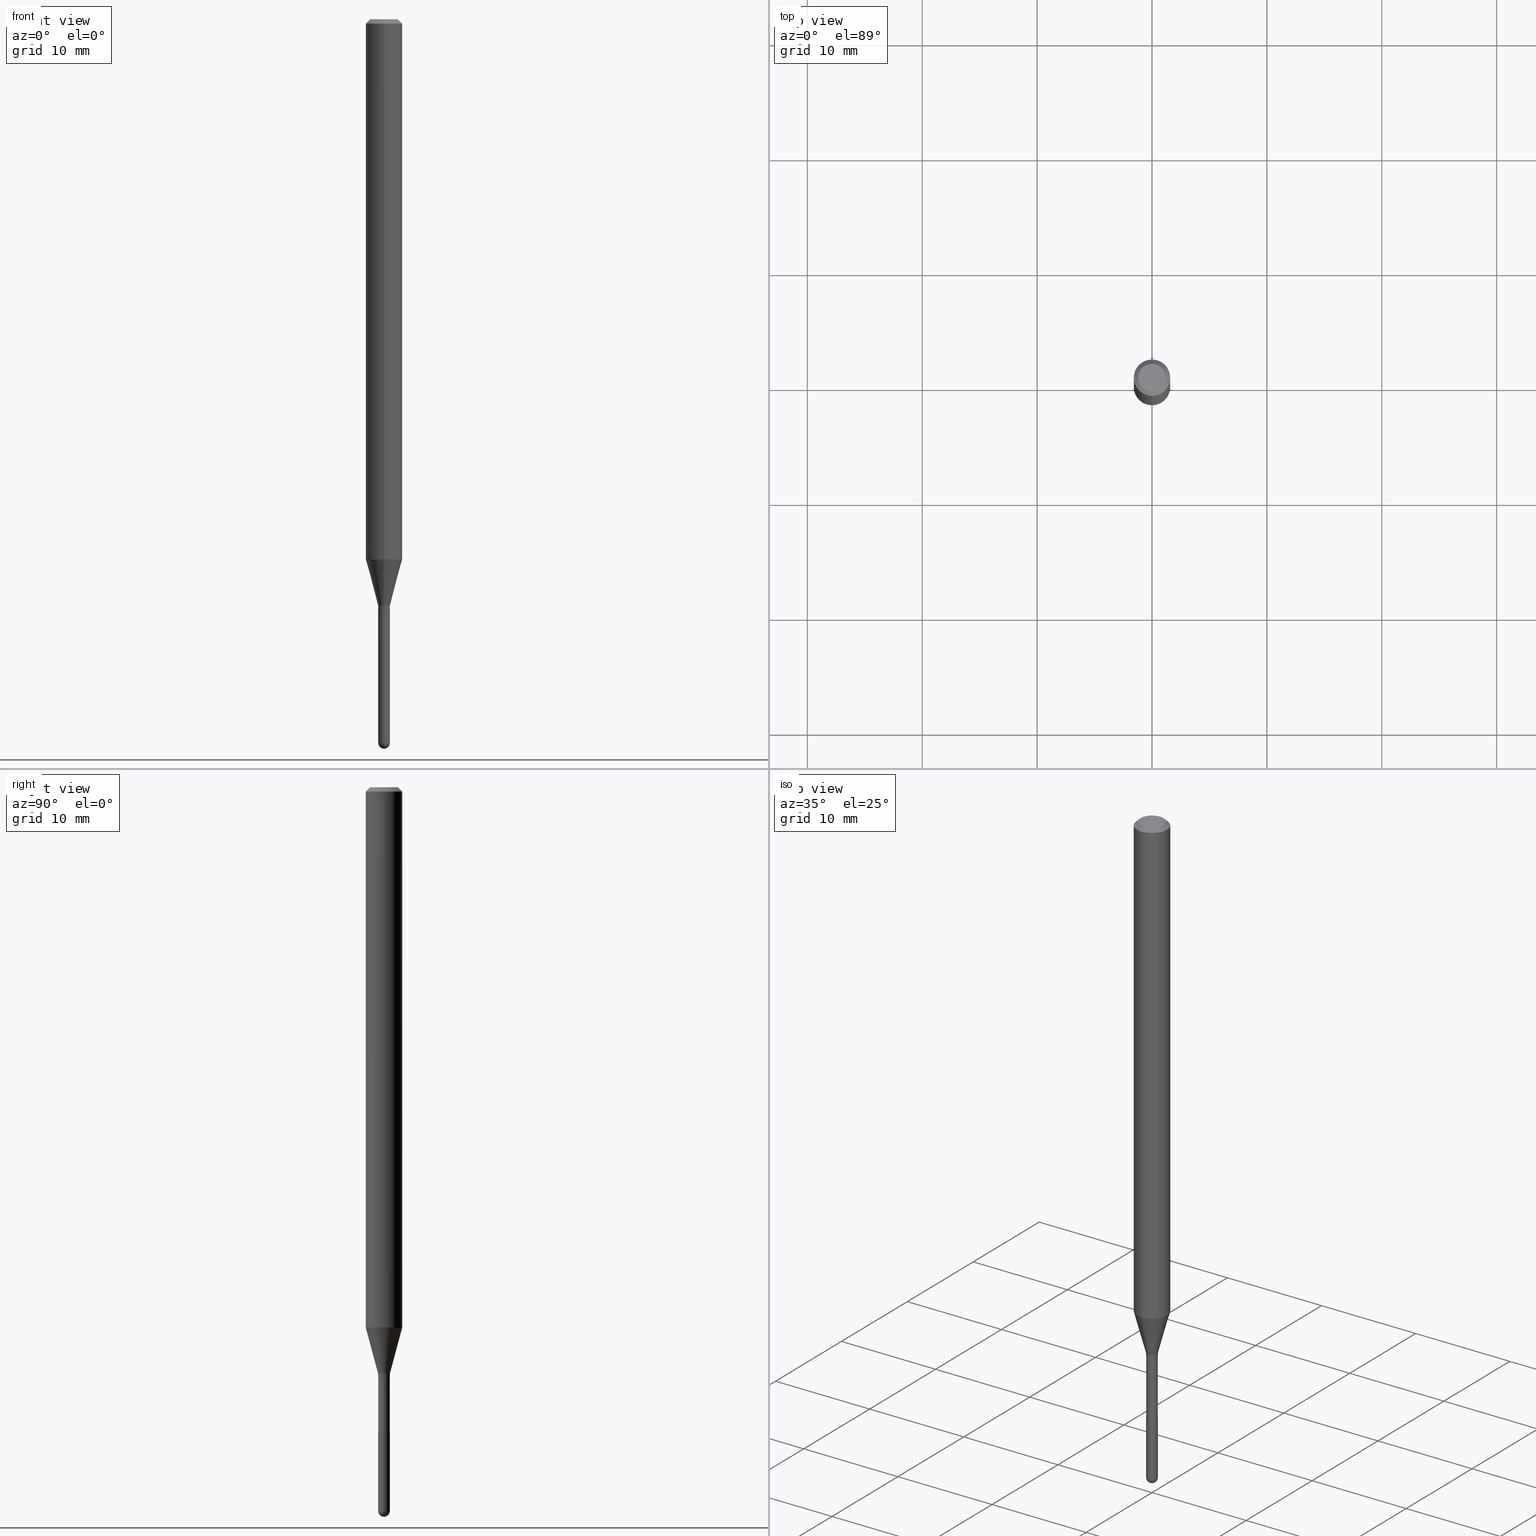
[diagram: canonical four-view strip — front | top / right | iso, engineering-drawing reading convention]
A machine part, canonical four-view strip (front | top / right | iso — engineering-drawing reading convention). The complete STEP part file that produces these views, byte-faithful:
ISO-10303-21;
HEADER;
FILE_DESCRIPTION (( 'STEP AP203' ),
    '1' );
FILE_NAME ('01013.STEP',
    '2024-03-07T19:45:48',
    ( '' ),
    ( '' ),
    'SwSTEP 2.0',
    'SolidWorks 2023',
    '' );
FILE_SCHEMA (( 'CONFIG_CONTROL_DESIGN' ));
ENDSEC;

DATA;
#1 = PERSON_AND_ORGANIZATION ( #465, #158 ) ;
#2 = LINE ( 'NONE', #361, #421 ) ;
#3 = ORIENTED_EDGE ( 'NONE', *, *, #135, .T. ) ;
#4 = FACE_OUTER_BOUND ( 'NONE', #500, .T. ) ;
#5 = DIRECTION ( 'NONE',  ( -2.445521062441042813E-29, 3.491406504910446446E-15, 1.000000000000000000 ) ) ;
#6 = DIRECTION ( 'NONE',  ( -2.445521062441042813E-29, 3.491406504910446446E-15, 1.000000000000000000 ) ) ;
#7 = DIRECTION ( 'NONE',  ( -6.982962677686265922E-15, -1.000000000000000000, 3.491406504910446446E-15 ) ) ;
#8 = CIRCLE ( 'NONE', #461, 0.06250000000000000000 ) ;
#9 = CARTESIAN_POINT ( 'NONE',  ( 4.939952546130906960E-29, -7.052641139919102262E-15, -2.020000000000000018 ) ) ;
#10 = CARTESIAN_POINT ( 'NONE',  ( 3.668281593661566673E-31, -5.237109757365672602E-17, -0.01500000000000000812 ) ) ;
#11 = LINE ( 'NONE', #407, #413 ) ;
#12 = ADVANCED_FACE ( 'NONE', ( #71 ), #241, .T. ) ;
#13 = DIRECTION ( 'NONE',  ( 2.438088387897960049E-29, -3.491481338843145188E-15, -1.000000000000000000 ) ) ;
#14 = ADVANCED_FACE ( 'NONE', ( #347 ), #344, .T. ) ;
#15 = DIRECTION ( 'NONE',  ( 1.000000000000000000, -6.982962677686235945E-15, 0.000000000000000000 ) ) ;
#16 = CIRCLE ( 'NONE', #23, 0.02000000000000000042 ) ;
#17 = DIRECTION ( 'NONE',  ( -6.982962677686266711E-15, -1.000000000000000000, 3.491406504910446840E-15 ) ) ;
#18 = DIRECTION ( 'NONE',  ( 2.445521062441042813E-29, -3.491406504910446446E-15, -1.000000000000000000 ) ) ;
#19 = LINE ( 'NONE', #132, #289 ) ;
#20 = VERTEX_POINT ( 'NONE', #322 ) ;
#21 = CARTESIAN_POINT ( 'NONE',  ( 0.02000000000000000042, -7.995492265950803467E-15, -2.480000000000000426 ) ) ;
#22 = ADVANCED_FACE ( 'NONE', ( #435 ), #432, .T. ) ;
#23 = AXIS2_PLACEMENT_3D ( 'NONE', #115, #169, #405 ) ;
#24 = VERTEX_POINT ( 'NONE', #275 ) ;
#25 = EDGE_LOOP ( 'NONE', ( #69, #163, #152, #186 ) ) ;
#26 = ORIENTED_EDGE ( 'NONE', *, *, #140, .F. ) ;
#27 = ORIENTED_EDGE ( 'NONE', *, *, #199, .T. ) ;
#28 = EDGE_LOOP ( 'NONE', ( #341, #154, #470, #479 ) ) ;
#29 = COORDINATED_UNIVERSAL_TIME_OFFSET ( 5, 0, .BEHIND. ) ;
#30 = CARTESIAN_POINT ( 'NONE',  ( 0.000000000000000000, 0.000000000000000000, 0.000000000000000000 ) ) ;
#31 = CALENDAR_DATE ( 2024, 7, 3 ) ;
#32 = CARTESIAN_POINT ( 'NONE',  ( 4.939952546130906960E-29, -7.052641139919102262E-15, -2.020000000000000018 ) ) ;
#33 = CIRCLE ( 'NONE', #107, 0.02000000000000000042 ) ;
#34 = ORIENTED_EDGE ( 'NONE', *, *, #494, .T. ) ;
#35 = CALENDAR_DATE ( 2024, 7, 3 ) ;
#36 = DIRECTION ( 'NONE',  ( -2.445521062441042813E-29, 3.491406504910446446E-15, 1.000000000000000000 ) ) ;
#37 = DIRECTION ( 'NONE',  ( -2.445521062441042813E-29, 3.491406504910446446E-15, 1.000000000000000000 ) ) ;
#38 = LINE ( 'NONE', #510, #374 ) ;
#39 = DIRECTION ( 'NONE',  ( 6.982962677686265133E-15, 1.000000000000000000, 0.000000000000000000 ) ) ;
#40 = PERSON_AND_ORGANIZATION ( #465, #158 ) ;
#41 = DIRECTION ( 'NONE',  ( 6.982962677686265922E-15, 1.000000000000000000, 0.000000000000000000 ) ) ;
#42 = APPROVAL ( #390, 'UNSPECIFIED' ) ;
#43 = DIRECTION ( 'NONE',  ( -2.445468806185136597E-29, 3.491481338843145583E-15, 1.000000000000000000 ) ) ;
#44 = AXIS2_PLACEMENT_3D ( 'NONE', #356, #167, #475 ) ;
#45 = PLANE ( 'NONE',  #52 ) ;
#46 = FACE_OUTER_BOUND ( 'NONE', #108, .T. ) ;
#47 = CARTESIAN_POINT ( 'NONE',  ( 3.668281593661566673E-31, -5.237109757365672602E-17, -0.01500000000000000812 ) ) ;
#48 = CARTESIAN_POINT ( 'NONE',  ( -0.02000000000000000042, -7.713724465245058285E-15, -2.480000000000000426 ) ) ;
#49 = ORIENTED_EDGE ( 'NONE', *, *, #143, .F. ) ;
#50 = DIRECTION ( 'NONE',  ( -2.445521062441042813E-29, 3.491406504910446446E-15, 1.000000000000000000 ) ) ;
#51 = DIRECTION ( 'NONE',  ( -2.445521062441042813E-29, 3.491406504910446446E-15, 1.000000000000000000 ) ) ;
#52 = AXIS2_PLACEMENT_3D ( 'NONE', #9, #173, #324 ) ;
#53 = DIRECTION ( 'NONE',  ( -6.982962677686264344E-15, -1.000000000000000000, 0.000000000000000000 ) ) ;
#54 = DIRECTION ( 'NONE',  ( -6.982962677686264344E-15, -1.000000000000000000, 0.000000000000000000 ) ) ;
#55 = ORIENTED_EDGE ( 'NONE', *, *, #256, .T. ) ;
#56 = PRODUCT ( '01013', '01013', '', ( #482 ) ) ;
#57 = CC_DESIGN_PERSON_AND_ORGANIZATION_ASSIGNMENT ( #233, #80, ( #349 ) ) ;
#58 = ORIENTED_EDGE ( 'NONE', *, *, #103, .F. ) ;
#59 = CIRCLE ( 'NONE', #168, 0.01999999999999992062 ) ;
#60 = EDGE_CURVE ( 'NONE', #339, #284, #384, .T. ) ;
#61 = LOCAL_TIME ( 14, 45, 48.00000000000000000, #394 ) ;
#62 = LOCAL_TIME ( 14, 45, 48.00000000000000000, #323 ) ;
#63 = ORIENTED_EDGE ( 'NONE', *, *, #135, .F. ) ;
#64 = ORIENTED_EDGE ( 'NONE', *, *, #343, .T. ) ;
#65 = ORIENTED_EDGE ( 'NONE', *, *, #140, .T. ) ;
#66 = CLOSED_SHELL ( 'NONE', ( #12, #96, #193, #160, #22 ) ) ;
#67 = CIRCLE ( 'NONE', #123, 0.04749999999999999362 ) ;
#68 = EDGE_CURVE ( 'NONE', #498, #468, #124, .T. ) ;
#69 = ORIENTED_EDGE ( 'NONE', *, *, #60, .F. ) ;
#70 = DATE_AND_TIME ( #430, #191 ) ;
#71 = FACE_OUTER_BOUND ( 'NONE', #180, .T. ) ;
#72 = FACE_OUTER_BOUND ( 'NONE', #105, .T. ) ;
#73 = ADVANCED_FACE ( 'NONE', ( #74 ), #270, .T. ) ;
#74 = FACE_OUTER_BOUND ( 'NONE', #25, .T. ) ;
#75 = SECURITY_CLASSIFICATION_LEVEL ( 'unclassified' ) ;
#76 = CARTESIAN_POINT ( 'NONE',  ( 4.915497335506496574E-29, -7.017727074869996788E-15, -2.010000000000000231 ) ) ;
#77 = AXIS2_PLACEMENT_3D ( 'NONE', #283, #162, #480 ) ;
#78 = LOCAL_TIME ( 14, 45, 48.00000000000000000, #243 ) ;
#79 = CARTESIAN_POINT ( 'NONE',  ( 4.440892098500625669E-16, 0.06250000000000000000, -2.182129065569029028E-16 ) ) ;
#80 = PERSON_AND_ORGANIZATION_ROLE ( 'classification_officer' ) ;
#81 = CYLINDRICAL_SURFACE ( 'NONE', #403, 0.01999999999999992409 ) ;
#82 = DESIGN_CONTEXT ( 'detailed design', #437, 'design' ) ;
#83 = DIRECTION ( 'NONE',  ( -2.445468806185136597E-29, 3.491481338843145583E-15, 1.000000000000000000 ) ) ;
#84 = EDGE_CURVE ( 'NONE', #181, #20, #373, .T. ) ;
#85 = APPROVAL_ROLE ( '' ) ;
#86 = DIRECTION ( 'NONE',  ( -2.445521062441042813E-29, 3.491406504910446446E-15, 1.000000000000000000 ) ) ;
#87 = ORIENTED_EDGE ( 'NONE', *, *, #225, .T. ) ;
#88 = DIRECTION ( 'NONE',  ( -2.445521062441042813E-29, 3.491406504910446446E-15, 1.000000000000000000 ) ) ;
#89 = VECTOR ( 'NONE', #495, 39.37007874015748143 ) ;
#90 = CARTESIAN_POINT ( 'NONE',  ( 6.063052306760780745E-29, -8.661323013929296789E-15, -2.480000000000000426 ) ) ;
#91 = CARTESIAN_POINT ( 'NONE',  ( -1.396592535536758874E-16, -0.02000000000000704339, -2.019500000000000295 ) ) ;
#92 = ORIENTED_EDGE ( 'NONE', *, *, #433, .F. ) ;
#93 = EDGE_CURVE ( 'NONE', #469, #468, #312, .T. ) ;
#94 = LENGTH_MEASURE_WITH_UNIT ( LENGTH_MEASURE( 0.02539999999999999897 ), #456 );
#95 = FACE_OUTER_BOUND ( 'NONE', #28, .T. ) ;
#96 = ADVANCED_FACE ( 'NONE', ( #116 ), #388, .T. ) ;
#97 = DIRECTION ( 'NONE',  ( -6.982962677686265922E-15, -1.000000000000000000, 3.483106191921935554E-15 ) ) ;
#98 = CARTESIAN_POINT ( 'NONE',  ( 6.064762639339139522E-29, -8.658873720331001644E-15, -2.480000000000000426 ) ) ;
#99 = AXIS2_PLACEMENT_3D ( 'NONE', #414, #371, #260 ) ;
#100 = DIRECTION ( 'NONE',  ( -2.445521062441042813E-29, 3.491406504910446446E-15, 1.000000000000000000 ) ) ;
#101 = EDGE_CURVE ( 'NONE', #272, #315, #59, .T. ) ;
#102 = CARTESIAN_POINT ( 'NONE',  ( 2.167679105981554066E-46, -3.094738805327674839E-32, -8.863874203634313695E-18 ) ) ;
#103 = EDGE_CURVE ( 'NONE', #339, #469, #237, .T. ) ;
#104 = VERTEX_POINT ( 'NONE', #459 ) ;
#105 = EDGE_LOOP ( 'NONE', ( #352, #376, #92, #380 ) ) ;
#106 = CLOSED_SHELL ( 'NONE', ( #393, #378, #184, #14, #235, #385, #73, #188, #147, #291, #227, #301 ) ) ;
#107 = AXIS2_PLACEMENT_3D ( 'NONE', #136, #454, #200 ) ;
#108 = EDGE_LOOP ( 'NONE', ( #255, #27 ) ) ;
#109 = ORIENTED_EDGE ( 'NONE', *, *, #199, .F. ) ;
#110 = VERTEX_POINT ( 'NONE', #91 ) ;
#111 = VECTOR ( 'NONE', #399, 39.37007874015748143 ) ;
#112 =( GEOMETRIC_REPRESENTATION_CONTEXT ( 3 ) GLOBAL_UNCERTAINTY_ASSIGNED_CONTEXT ( ( #280 ) ) GLOBAL_UNIT_ASSIGNED_CONTEXT ( ( #410, #458, #310 ) ) REPRESENTATION_CONTEXT ( 'NONE', 'WORKASPACE' ) );
#113 = APPROVAL_PERSON_ORGANIZATION ( #40, #383, #508 ) ;
#114 = CARTESIAN_POINT ( 'NONE',  ( -4.287811248607203282E-16, -0.06250000000000005551, -0.01499999999999979128 ) ) ;
#115 = CARTESIAN_POINT ( 'NONE',  ( 6.064762639339139522E-29, -8.658873720331001644E-15, -2.480000000000000426 ) ) ;
#116 = FACE_OUTER_BOUND ( 'NONE', #228, .T. ) ;
#117 = EDGE_CURVE ( 'NONE', #315, #272, #303, .T. ) ;
#118 = DIRECTION ( 'NONE',  ( -2.445521062441042813E-29, 3.491406504910446446E-15, 1.000000000000000000 ) ) ;
#119 = EDGE_LOOP ( 'NONE', ( #265, #392, #55, #306 ) ) ;
#120 = APPROVAL_STATUS ( 'not_yet_approved' ) ;
#121 = AXIS2_PLACEMENT_3D ( 'NONE', #215, #178, #366 ) ;
#122 = FACE_OUTER_BOUND ( 'NONE', #506, .T. ) ;
#123 = AXIS2_PLACEMENT_3D ( 'NONE', #102, #261, #418 ) ;
#124 = LINE ( 'NONE', #114, #420 ) ;
#125 = EDGE_CURVE ( 'NONE', #20, #426, #276, .T. ) ;
#126 = DIRECTION ( 'NONE',  ( -6.982962677686265133E-15, -1.000000000000000000, 3.491406504910446840E-15 ) ) ;
#127 = ORIENTED_EDGE ( 'NONE', *, *, #117, .T. ) ;
#128 = PERSON_AND_ORGANIZATION ( #465, #158 ) ;
#129 = CARTESIAN_POINT ( 'NONE',  ( 3.840629472727447874E-16, 0.04749999999999999362, -1.747056831868805136E-16 ) ) ;
#130 = EDGE_CURVE ( 'NONE', #426, #104, #412, .T. ) ;
#131 = LINE ( 'NONE', #252, #89 ) ;
#132 = CARTESIAN_POINT ( 'NONE',  ( 1.385558334732689138E-16, 0.01949999999999294659, -2.020000000000000018 ) ) ;
#133 = AXIS2_PLACEMENT_3D ( 'NONE', #259, #141, #257 ) ;
#134 = AXIS2_PLACEMENT_3D ( 'NONE', #10, #18, #331 ) ;
#135 = EDGE_CURVE ( 'NONE', #104, #149, #309, .T. ) ;
#136 = CARTESIAN_POINT ( 'NONE',  ( 4.939846988493976284E-29, -7.052792304463154463E-15, -2.020000000000000018 ) ) ;
#137 = AXIS2_PLACEMENT_3D ( 'NONE', #206, #240, #345 ) ;
#138 = LOCAL_TIME ( 14, 45, 48.00000000000000000, #29 ) ;
#139 = CARTESIAN_POINT ( 'NONE',  ( 4.527607959126081686E-29, -6.463947550056403649E-15, -1.851387840678323293 ) ) ;
#140 = EDGE_CURVE ( 'NONE', #429, #24, #157, .T. ) ;
#141 = DIRECTION ( 'NONE',  ( -2.445521062441042813E-29, 3.491406504910446446E-15, 1.000000000000000000 ) ) ;
#142 = DIRECTION ( 'NONE',  ( 6.982962677686265922E-15, 1.000000000000000000, -3.483106191921935554E-15 ) ) ;
#143 = EDGE_CURVE ( 'NONE', #377, #315, #179, .T. ) ;
#144 = AXIS2_PLACEMENT_3D ( 'NONE', #204, #512, #477 ) ;
#145 = DIRECTION ( 'NONE',  ( -6.982962677686265922E-15, -1.000000000000000000, 4.370956789862821150E-15 ) ) ;
#146 = ORIENTED_EDGE ( 'NONE', *, *, #509, .F. ) ;
#147 = ADVANCED_FACE ( 'NONE', ( #369 ), #330, .F. ) ;
#148 = ORIENTED_EDGE ( 'NONE', *, *, #130, .T. ) ;
#149 = VERTEX_POINT ( 'NONE', #48 ) ;
#150 = VECTOR ( 'NONE', #5, 39.37007874015748143 ) ;
#151 = CIRCLE ( 'NONE', #99, 0.01999999999999992409 ) ;
#152 = ORIENTED_EDGE ( 'NONE', *, *, #93, .T. ) ;
#153 = ORIENTED_EDGE ( 'NONE', *, *, #488, .F. ) ;
#154 = ORIENTED_EDGE ( 'NONE', *, *, #68, .T. ) ;
#155 = CC_DESIGN_PERSON_AND_ORGANIZATION_ASSIGNMENT ( #202, #278, ( #320 ) ) ;
#156 = ADVANCED_BREP_SHAPE_REPRESENTATION ( '01013', ( #402, #232, #44 ), #112 ) ;
#157 = CIRCLE ( 'NONE', #496, 0.01949999999999999997 ) ;
#158 = ORGANIZATION ( 'UNSPECIFIED', 'UNSPECIFIED', '' ) ;
#159 = CARTESIAN_POINT ( 'NONE',  ( 4.939846988493976284E-29, -7.052792304463154463E-15, -2.020000000000000018 ) ) ;
#160 = ADVANCED_FACE ( 'NONE', ( #211 ), #411, .T. ) ;
#161 = ORIENTED_EDGE ( 'NONE', *, *, #427, .F. ) ;
#162 = DIRECTION ( 'NONE',  ( -2.445521062441042813E-29, 3.491406504910446446E-15, 1.000000000000000000 ) ) ;
#163 = ORIENTED_EDGE ( 'NONE', *, *, #103, .T. ) ;
#164 = APPROVAL_ROLE ( '' ) ;
#165 = CARTESIAN_POINT ( 'NONE',  ( 4.915497335506496574E-29, -7.017727074869996788E-15, -2.010000000000000231 ) ) ;
#166 = DIRECTION ( 'NONE',  ( -4.851104656540964275E-15, -0.7071067811865500152, -0.7071067811865450192 ) ) ;
#167 = DIRECTION ( 'NONE',  ( 0.000000000000000000, 0.000000000000000000, 1.000000000000000000 ) ) ;
#168 = AXIS2_PLACEMENT_3D ( 'NONE', #446, #359, #171 ) ;
#169 = DIRECTION ( 'NONE',  ( -2.445468806185136597E-29, 3.491481338843145583E-15, 1.000000000000000000 ) ) ;
#170 = VECTOR ( 'NONE', #363, 39.37007874015748143 ) ;
#171 = DIRECTION ( 'NONE',  ( -6.982962677686265133E-15, -1.000000000000000000, 0.000000000000000000 ) ) ;
#172 = PERSON_AND_ORGANIZATION_ROLE ( 'design_owner' ) ;
#173 = DIRECTION ( 'NONE',  ( -2.445521062441042533E-29, 3.491406504910446446E-15, 1.000000000000000000 ) ) ;
#174 = CARTESIAN_POINT ( 'NONE',  ( 4.939952546130906960E-29, -7.052641139919102262E-15, -2.020000000000000018 ) ) ;
#175 = CARTESIAN_POINT ( 'NONE',  ( -3.773273898774340269E-16, -0.04749999999999999362, 1.569779347796119017E-16 ) ) ;
#176 = DIRECTION ( 'NONE',  ( -6.982962677686265922E-15, -1.000000000000000000, 4.370956789862821150E-15 ) ) ;
#177 = AXIS2_PLACEMENT_3D ( 'NONE', #76, #36, #203 ) ;
#178 = DIRECTION ( 'NONE',  ( -2.445468806185136597E-29, 3.491481338843145583E-15, 1.000000000000000000 ) ) ;
#179 = LINE ( 'NONE', #220, #111 ) ;
#180 = EDGE_LOOP ( 'NONE', ( #3, #424, #423, #194, #148 ) ) ;
#181 = VERTEX_POINT ( 'NONE', #457 ) ;
#182 = AXIS2_PLACEMENT_3D ( 'NONE', #90, #491, #452 ) ;
#183 = EDGE_LOOP ( 'NONE', ( #224, #327, #189, #281 ) ) ;
#184 = ADVANCED_FACE ( 'NONE', ( #95 ), #467, .T. ) ;
#185 = EDGE_LOOP ( 'NONE', ( #153, #127, #201, #58 ) ) ;
#186 = ORIENTED_EDGE ( 'NONE', *, *, #285, .F. ) ;
#187 = EDGE_CURVE ( 'NONE', #216, #284, #131, .T. ) ;
#188 = ADVANCED_FACE ( 'NONE', ( #406 ), #197, .T. ) ;
#189 = ORIENTED_EDGE ( 'NONE', *, *, #130, .F. ) ;
#190 = CIRCLE ( 'NONE', #137, 0.06250000000000000000 ) ;
#191 = LOCAL_TIME ( 14, 45, 48.00000000000000000, #443 ) ;
#192 = ORIENTED_EDGE ( 'NONE', *, *, #117, .F. ) ;
#193 = ADVANCED_FACE ( 'NONE', ( #46 ), #295, .F. ) ;
#194 = ORIENTED_EDGE ( 'NONE', *, *, #225, .F. ) ;
#195 = APPROVAL_STATUS ( 'not_yet_approved' ) ;
#196 = ORIENTED_EDGE ( 'NONE', *, *, #494, .F. ) ;
#197 = CONICAL_SURFACE ( 'NONE', #489, 0.06250000000000000000, 0.7853981633974483900 ) ;
#198 = PERSON_AND_ORGANIZATION ( #465, #158 ) ;
#199 = EDGE_CURVE ( 'NONE', #264, #455, #33, .T. ) ;
#200 = DIRECTION ( 'NONE',  ( 1.000000000000000000, -6.982962677686284065E-15, 0.000000000000000000 ) ) ;
#201 = ORIENTED_EDGE ( 'NONE', *, *, #274, .T. ) ;
#202 = PERSON_AND_ORGANIZATION ( #465, #158 ) ;
#203 = DIRECTION ( 'NONE',  ( -6.982962677686265133E-15, -1.000000000000000000, 0.000000000000000000 ) ) ;
#204 = CARTESIAN_POINT ( 'NONE',  ( 6.063052306760780745E-29, -8.661323013929296789E-15, -2.480000000000000426 ) ) ;
#205 = APPROVAL_DATE_TIME ( #70, #249 ) ;
#206 = CARTESIAN_POINT ( 'NONE',  ( 3.668281593661566673E-31, -5.237109757365672602E-17, -0.01500000000000000812 ) ) ;
#207 = DIRECTION ( 'NONE',  ( -1.000000000000000000, 6.982962677686265133E-15, -4.883557194083112340E-29 ) ) ;
#208 = APPLICATION_PROTOCOL_DEFINITION ( 'international standard', 'config_control_design', 1994, #409 ) ;
#209 = DIRECTION ( 'NONE',  ( -1.807323732225332900E-15, -0.2588190451025185745, 0.9659258262890689783 ) ) ;
#210 = CC_DESIGN_APPROVAL ( #383, ( #349 ) ) ;
#211 = FACE_OUTER_BOUND ( 'NONE', #183, .T. ) ;
#212 = CARTESIAN_POINT ( 'NONE',  ( 3.668281593661566673E-31, -5.237109757365672602E-17, -0.01500000000000000812 ) ) ;
#213 = PRODUCT_RELATED_PRODUCT_CATEGORY ( 'detail', '', ( #56 ) ) ;
#214 = DIRECTION ( 'NONE',  ( -2.445521062441042813E-29, 3.491406504910446446E-15, 1.000000000000000000 ) ) ;
#215 = CARTESIAN_POINT ( 'NONE',  ( 6.064762639339139522E-29, -8.658873720331001644E-15, -2.480000000000000426 ) ) ;
#216 = VERTEX_POINT ( 'NONE', #129 ) ;
#217 = CARTESIAN_POINT ( 'NONE',  ( -0.02000000000000000042, 1.421085471520200401E-16, -9.837870180509812545E-31 ) ) ;
#218 = AXIS2_PLACEMENT_3D ( 'NONE', #408, #43, #15 ) ;
#219 = CIRCLE ( 'NONE', #269, 0.06250000000000000000 ) ;
#220 = CARTESIAN_POINT ( 'NONE',  ( 1.421085471520194731E-16, 0.01999999999999992409, -6.982813009820866809E-17 ) ) ;
#221 = EDGE_CURVE ( 'NONE', #377, #110, #503, .T. ) ;
#222 = DIRECTION ( 'NONE',  ( -2.445521062441042813E-29, 3.491406504910446446E-15, 1.000000000000000000 ) ) ;
#223 = ORIENTED_EDGE ( 'NONE', *, *, #425, .T. ) ;
#224 = ORIENTED_EDGE ( 'NONE', *, *, #84, .F. ) ;
#225 = EDGE_CURVE ( 'NONE', #426, #455, #2, .T. ) ;
#226 = EDGE_LOOP ( 'NONE', ( #302, #381, #146, #419 ) ) ;
#227 = ADVANCED_FACE ( 'NONE', ( #451 ), #336, .T. ) ;
#228 = EDGE_LOOP ( 'NONE', ( #338, #463, #502, #63 ) ) ;
#229 = ORIENTED_EDGE ( 'NONE', *, *, #445, .T. ) ;
#230 = AXIS2_PLACEMENT_3D ( 'NONE', #364, #13, #326 ) ;
#231 = EDGE_LOOP ( 'NONE', ( #65, #262, #305, #375 ) ) ;
#232 = MANIFOLD_SOLID_BREP ( 'Body-Move/Copy2[2]', #106 ) ;
#233 = PERSON_AND_ORGANIZATION ( #465, #158 ) ;
#234 = DIRECTION ( 'NONE',  ( -2.445521062441042813E-29, 3.491406504910446446E-15, 1.000000000000000000 ) ) ;
#235 = ADVANCED_FACE ( 'NONE', ( #72 ), #277, .T. ) ;
#236 = LINE ( 'NONE', #391, #511 ) ;
#237 = CIRCLE ( 'NONE', #334, 0.06250000000000000000 ) ;
#238 = VECTOR ( 'NONE', #246, 39.37007874015748143 ) ;
#239 = PERSON_AND_ORGANIZATION ( #465, #158 ) ;
#240 = DIRECTION ( 'NONE',  ( -2.445521062441042813E-29, 3.491406504910446446E-15, 1.000000000000000000 ) ) ;
#241 = CYLINDRICAL_SURFACE ( 'NONE', #346, 0.02000000000000000042 ) ;
#242 = CARTESIAN_POINT ( 'NONE',  ( 0.000000000000000000, 0.000000000000000000, 0.000000000000000000 ) ) ;
#243 = COORDINATED_UNIVERSAL_TIME_OFFSET ( 5, 0, .BEHIND. ) ;
#244 = CARTESIAN_POINT ( 'NONE',  ( 0.000000000000000000, 0.000000000000000000, 0.000000000000000000 ) ) ;
#245 = DATE_AND_TIME ( #447, #138 ) ;
#246 = DIRECTION ( 'NONE',  ( -4.937700262164674260E-15, -0.7071067811865632269, 0.7071067811865319186 ) ) ;
#247 = DIRECTION ( 'NONE',  ( 1.000000000000000000, -6.982962677686265922E-15, 4.876176775795935793E-29 ) ) ;
#248 = CARTESIAN_POINT ( 'NONE',  ( 4.440892098501075812E-16, 0.06249999999999351907, -1.851387840678323737 ) ) ;
#249 = APPROVAL ( #120, 'UNSPECIFIED' ) ;
#250 = AXIS2_PLACEMENT_3D ( 'NONE', #370, #329, #17 ) ;
#251 = CC_DESIGN_APPROVAL ( #249, ( #320 ) ) ;
#252 = CARTESIAN_POINT ( 'NONE',  ( 4.364351673553919652E-16, 0.06249999999999995143, -0.01500000000000022669 ) ) ;
#253 = CARTESIAN_POINT ( 'NONE',  ( 0.02000000000000000042, -7.192451558016880271E-15, -2.020000000000000018 ) ) ;
#254 = DIRECTION ( 'NONE',  ( -2.445468806185136597E-29, 3.491481338843145583E-15, 1.000000000000000000 ) ) ;
#255 = ORIENTED_EDGE ( 'NONE', *, *, #358, .T. ) ;
#256 = EDGE_CURVE ( 'NONE', #429, #110, #398, .T. ) ;
#257 = DIRECTION ( 'NONE',  ( -6.982962677686265133E-15, -1.000000000000000000, 0.000000000000000000 ) ) ;
#258 = CARTESIAN_POINT ( 'NONE',  ( -4.364351673553912750E-16, -0.06250000000000005551, -0.01499999999999979128 ) ) ;
#259 = CARTESIAN_POINT ( 'NONE',  ( 4.915497335506496574E-29, -7.017727074869996788E-15, -2.010000000000000231 ) ) ;
#260 = DIRECTION ( 'NONE',  ( -6.982962677686265133E-15, -1.000000000000000000, 0.000000000000000000 ) ) ;
#261 = DIRECTION ( 'NONE',  ( -2.445521062441042813E-29, 3.491406504910446446E-15, 1.000000000000000000 ) ) ;
#262 = ORIENTED_EDGE ( 'NONE', *, *, #400, .T. ) ;
#263 = AXIS2_PLACEMENT_3D ( 'NONE', #486, #88, #126 ) ;
#264 = VERTEX_POINT ( 'NONE', #286 ) ;
#265 = ORIENTED_EDGE ( 'NONE', *, *, #400, .F. ) ;
#266 = EDGE_LOOP ( 'NONE', ( #337, #64, #307, #87, #109 ) ) ;
#267 = EDGE_CURVE ( 'NONE', #181, #104, #472, .T. ) ;
#268 = ORIENTED_EDGE ( 'NONE', *, *, #143, .T. ) ;
#269 = AXIS2_PLACEMENT_3D ( 'NONE', #139, #222, #145 ) ;
#270 = CYLINDRICAL_SURFACE ( 'NONE', #439, 0.06250000000000000000 ) ;
#271 = CARTESIAN_POINT ( 'NONE',  ( 1.421085471520683825E-16, 0.01999999999999280478, -2.019500000000000295 ) ) ;
#272 = VERTEX_POINT ( 'NONE', #483 ) ;
#273 = DIRECTION ( 'NONE',  ( -6.982962677686264344E-15, -1.000000000000000000, 0.000000000000000000 ) ) ;
#274 = EDGE_CURVE ( 'NONE', #272, #469, #38, .T. ) ;
#275 = CARTESIAN_POINT ( 'NONE',  ( 1.403321903126688454E-16, 0.01949999999999294659, -2.020000000000000018 ) ) ;
#276 = CIRCLE ( 'NONE', #218, 0.02000000000000000042 ) ;
#277 = CONICAL_SURFACE ( 'NONE', #304, 0.01999999999999992062, 0.2617993877991506846 ) ;
#278 = PERSON_AND_ORGANIZATION_ROLE ( 'design_supplier' ) ;
#279 = CYLINDRICAL_SURFACE ( 'NONE', #263, 0.01999999999999992409 ) ;
#280 = UNCERTAINTY_MEASURE_WITH_UNIT (LENGTH_MEASURE( 1.000000000000000082E-05 ), #410, 'distance_accuracy_value', 'NONE');
#281 = ORIENTED_EDGE ( 'NONE', *, *, #125, .F. ) ;
#282 = PERSON_AND_ORGANIZATION_ROLE ( 'creator' ) ;
#283 = CARTESIAN_POINT ( 'NONE',  ( 4.939952546130906960E-29, -7.052641139919102262E-15, -2.020000000000000018 ) ) ;
#284 = VERTEX_POINT ( 'NONE', #395 ) ;
#285 = EDGE_CURVE ( 'NONE', #284, #468, #190, .T. ) ;
#286 = CARTESIAN_POINT ( 'NONE',  ( -0.02000000000000000042, -7.713724465245058285E-15, -2.020000000000000018 ) ) ;
#287 = CALENDAR_DATE ( 2024, 7, 3 ) ;
#288 = DIRECTION ( 'NONE',  ( -2.445521062441042813E-29, 3.491406504910446446E-15, 1.000000000000000000 ) ) ;
#289 = VECTOR ( 'NONE', #294, 39.37007874015748143 ) ;
#290 = DIRECTION ( 'NONE',  ( 2.445521062441042813E-29, -3.491406504910446446E-15, -1.000000000000000000 ) ) ;
#291 = ADVANCED_FACE ( 'NONE', ( #357 ), #45, .F. ) ;
#292 = APPROVAL_DATE_TIME ( #335, #383 ) ;
#293 = CARTESIAN_POINT ( 'NONE',  ( 3.316907271900976096E-16, 0.04749999999999999362, -1.702737460850633545E-16 ) ) ;
#294 = DIRECTION ( 'NONE',  ( 5.024295867788190974E-15, 0.7071067811865681119, 0.7071067811865270336 ) ) ;
#295 = PLANE ( 'NONE',  #230 ) ;
#296 = AXIS2_PLACEMENT_3D ( 'NONE', #440, #234, #7 ) ;
#297 = EDGE_LOOP ( 'NONE', ( #34, #229 ) ) ;
#298 = CARTESIAN_POINT ( 'NONE',  ( -1.361677722148327570E-16, -0.01950000000000704989, -2.020000000000000018 ) ) ;
#299 = EDGE_CURVE ( 'NONE', #110, #272, #236, .T. ) ;
#300 = ORIENTED_EDGE ( 'NONE', *, *, #187, .T. ) ;
#301 = ADVANCED_FACE ( 'NONE', ( #122 ), #279, .T. ) ;
#302 = ORIENTED_EDGE ( 'NONE', *, *, #433, .T. ) ;
#303 = CIRCLE ( 'NONE', #133, 0.01999999999999992062 ) ;
#304 = AXIS2_PLACEMENT_3D ( 'NONE', #165, #86, #354 ) ;
#305 = ORIENTED_EDGE ( 'NONE', *, *, #425, .F. ) ;
#306 = ORIENTED_EDGE ( 'NONE', *, *, #221, .F. ) ;
#307 = ORIENTED_EDGE ( 'NONE', *, *, #125, .T. ) ;
#308 = DIRECTION ( 'NONE',  ( 1.000000000000000000, -6.982962677686265922E-15, 4.876176775795935793E-29 ) ) ;
#309 = CIRCLE ( 'NONE', #121, 0.02000000000000000042 ) ;
#310 =( NAMED_UNIT ( * ) SI_UNIT ( $, .STERADIAN. ) SOLID_ANGLE_UNIT ( ) );
#311 = DIRECTION ( 'NONE',  ( -2.445468806185136597E-29, 3.491481338843145583E-15, 1.000000000000000000 ) ) ;
#312 = LINE ( 'NONE', #355, #150 ) ;
#313 = DATE_AND_TIME ( #31, #61 ) ;
#314 = CARTESIAN_POINT ( 'NONE',  ( 2.930988785010883270E-16, 0.01999999999999290193, -2.010000000000000231 ) ) ;
#315 = VERTEX_POINT ( 'NONE', #314 ) ;
#316 = DATE_AND_TIME ( #35, #62 ) ;
#317 = DIRECTION ( 'NONE',  ( -2.445521062441042813E-29, 3.491406504910446446E-15, 1.000000000000000000 ) ) ;
#318 = DIRECTION ( 'NONE',  ( -6.982962677686265922E-15, -1.000000000000000000, 3.491406504910446446E-15 ) ) ;
#319 = AXIS2_PLACEMENT_3D ( 'NONE', #159, #311, #321 ) ;
#320 = PRODUCT_DEFINITION_FORMATION_WITH_SPECIFIED_SOURCE ( 'ANY', '', #56, .NOT_KNOWN. ) ;
#321 = DIRECTION ( 'NONE',  ( 1.000000000000000000, -6.982962677686284065E-15, 0.000000000000000000 ) ) ;
#322 = CARTESIAN_POINT ( 'NONE',  ( -1.421085471519590267E-16, -0.02000000000000860811, -2.480000000000000426 ) ) ;
#323 = COORDINATED_UNIVERSAL_TIME_OFFSET ( 5, 0, .BEHIND. ) ;
#324 = DIRECTION ( 'NONE',  ( -6.982962677686265922E-15, -1.000000000000000000, 3.491406504910446446E-15 ) ) ;
#325 = DIRECTION ( 'NONE',  ( 6.982962677686265922E-15, 1.000000000000000000, -3.491406504910446446E-15 ) ) ;
#326 = DIRECTION ( 'NONE',  ( -1.000000000000000000, 6.982962677686265922E-15, -4.876176775795935793E-29 ) ) ;
#327 = ORIENTED_EDGE ( 'NONE', *, *, #267, .T. ) ;
#328 = AXIS2_PLACEMENT_3D ( 'NONE', #32, #118, #273 ) ;
#329 = DIRECTION ( 'NONE',  ( -2.445521062441042813E-29, 3.491406504910446446E-15, 1.000000000000000000 ) ) ;
#330 = PLANE ( 'NONE',  #401 ) ;
#331 = DIRECTION ( 'NONE',  ( 6.982962677686265922E-15, 1.000000000000000000, -3.483106191921935554E-15 ) ) ;
#332 = ORIENTED_EDGE ( 'NONE', *, *, #68, .F. ) ;
#333 = EDGE_LOOP ( 'NONE', ( #332, #196, #300, #342 ) ) ;
#334 = AXIS2_PLACEMENT_3D ( 'NONE', #362, #51, #176 ) ;
#335 = DATE_AND_TIME ( #287, #78 ) ;
#336 = CONICAL_SURFACE ( 'NONE', #77, 0.01949999999999999997, 0.7853981633974739252 ) ;
#337 = ORIENTED_EDGE ( 'NONE', *, *, #449, .F. ) ;
#338 = ORIENTED_EDGE ( 'NONE', *, *, #267, .F. ) ;
#339 = VERTEX_POINT ( 'NONE', #248 ) ;
#340 = CIRCLE ( 'NONE', #441, 0.01949999999999999997 ) ;
#341 = ORIENTED_EDGE ( 'NONE', *, *, #445, .F. ) ;
#342 = ORIENTED_EDGE ( 'NONE', *, *, #285, .T. ) ;
#343 = EDGE_CURVE ( 'NONE', #149, #20, #16, .T. ) ;
#344 = CYLINDRICAL_SURFACE ( 'NONE', #296, 0.06250000000000000000 ) ;
#345 = DIRECTION ( 'NONE',  ( -6.982962677686265922E-15, -1.000000000000000000, 3.483106191921935554E-15 ) ) ;
#346 = AXIS2_PLACEMENT_3D ( 'NONE', #244, #83, #247 ) ;
#347 = FACE_OUTER_BOUND ( 'NONE', #226, .T. ) ;
#348 = AXIS2_PLACEMENT_3D ( 'NONE', #386, #476, #41 ) ;
#349 = SECURITY_CLASSIFICATION ( '', '', #75 ) ;
#350 = APPLICATION_PROTOCOL_DEFINITION ( 'international standard', 'config_control_design', 1994, #437 ) ;
#351 = CARTESIAN_POINT ( 'NONE',  ( 4.938729785599686721E-29, -7.050895436666647225E-15, -2.019500000000000295 ) ) ;
#352 = ORIENTED_EDGE ( 'NONE', *, *, #101, .T. ) ;
#353 = PERSON_AND_ORGANIZATION ( #465, #158 ) ;
#354 = DIRECTION ( 'NONE',  ( -6.982962677686265133E-15, -1.000000000000000000, 0.000000000000000000 ) ) ;
#355 = CARTESIAN_POINT ( 'NONE',  ( -4.364351673553916201E-16, -0.06250000000000000000, 2.182129065569029028E-16 ) ) ;
#356 = CARTESIAN_POINT ( 'NONE',  ( 0.000000000000000000, 0.000000000000000000, 0.000000000000000000 ) ) ;
#357 = FACE_OUTER_BOUND ( 'NONE', #507, .T. ) ;
#358 = EDGE_CURVE ( 'NONE', #455, #264, #422, .T. ) ;
#359 = DIRECTION ( 'NONE',  ( -2.445521062441042813E-29, 3.491406504910446446E-15, 1.000000000000000000 ) ) ;
#360 = AXIS2_PLACEMENT_3D ( 'NONE', #473, #396, #308 ) ;
#361 = CARTESIAN_POINT ( 'NONE',  ( 0.02000000000000000042, -1.396592535537253145E-16, 9.752353551591871936E-31 ) ) ;
#362 = CARTESIAN_POINT ( 'NONE',  ( 4.527607959126081686E-29, -6.463947550056403649E-15, -1.851387840678323293 ) ) ;
#363 = DIRECTION ( 'NONE',  ( -2.445468806185136877E-29, 3.491481338843145188E-15, 1.000000000000000000 ) ) ;
#364 = CARTESIAN_POINT ( 'NONE',  ( 1.396592535537747169E-16, 0.01999999999999294703, -2.020000000000000018 ) ) ;
#365 = CARTESIAN_POINT ( 'NONE',  ( 4.939952546130906960E-29, -7.052641139919102262E-15, -2.020000000000000018 ) ) ;
#366 = DIRECTION ( 'NONE',  ( 1.000000000000000000, -6.982962677686235945E-15, 0.000000000000000000 ) ) ;
#367 = VECTOR ( 'NONE', #37, 39.37007874015748143 ) ;
#368 = DIRECTION ( 'NONE',  ( 1.839019923739603076E-15, 0.2588190451025253469, 0.9659258262890670910 ) ) ;
#369 = FACE_OUTER_BOUND ( 'NONE', #297, .T. ) ;
#370 = CARTESIAN_POINT ( 'NONE',  ( 2.167679105981554066E-46, -3.094738805327674839E-32, -8.863874203634313695E-18 ) ) ;
#371 = DIRECTION ( 'NONE',  ( -2.445521062441042813E-29, 3.491406504910446446E-15, 1.000000000000000000 ) ) ;
#372 = CC_DESIGN_DATE_AND_TIME_ASSIGNMENT ( #316, #485, ( #417 ) ) ;
#373 = CIRCLE ( 'NONE', #144, 0.01999999999999989633 ) ;
#374 = VECTOR ( 'NONE', #209, 39.37007874015748143 ) ;
#375 = ORIENTED_EDGE ( 'NONE', *, *, #256, .F. ) ;
#376 = ORIENTED_EDGE ( 'NONE', *, *, #488, .T. ) ;
#377 = VERTEX_POINT ( 'NONE', #271 ) ;
#378 = ADVANCED_FACE ( 'NONE', ( #434 ), #379, .T. ) ;
#379 = CONICAL_SURFACE ( 'NONE', #328, 0.01949999999999999997, 0.7853981633974739252 ) ;
#380 = ORIENTED_EDGE ( 'NONE', *, *, #274, .F. ) ;
#381 = ORIENTED_EDGE ( 'NONE', *, *, #60, .T. ) ;
#382 = PERSON_AND_ORGANIZATION_ROLE ( 'creator' ) ;
#383 = APPROVAL ( #195, 'UNSPECIFIED' ) ;
#384 = LINE ( 'NONE', #79, #367 ) ;
#385 = ADVANCED_FACE ( 'NONE', ( #438 ), #389, .T. ) ;
#386 = CARTESIAN_POINT ( 'NONE',  ( 6.063052306760780745E-29, -8.661323013929296789E-15, -2.480000000000000426 ) ) ;
#387 = AXIS2_PLACEMENT_3D ( 'NONE', #481, #207, #39 ) ;
#388 = SPHERICAL_SURFACE ( 'NONE', #387, 0.01999999999999989633 ) ;
#389 = CONICAL_SURFACE ( 'NONE', #177, 0.01999999999999992062, 0.2617993877991506846 ) ;
#390 = APPROVAL_STATUS ( 'not_yet_approved' ) ;
#391 = CARTESIAN_POINT ( 'NONE',  ( -1.396592535537247721E-16, -0.01999999999999992409, 6.982813009820866809E-17 ) ) ;
#392 = ORIENTED_EDGE ( 'NONE', *, *, #427, .T. ) ;
#393 = ADVANCED_FACE ( 'NONE', ( #4 ), #81, .T. ) ;
#394 = COORDINATED_UNIVERSAL_TIME_OFFSET ( 5, 0, .BEHIND. ) ;
#395 = CARTESIAN_POINT ( 'NONE',  ( 4.440892098501081729E-16, 0.06249999999999995143, -0.01500000000000022669 ) ) ;
#396 = DIRECTION ( 'NONE',  ( -2.445468806185136597E-29, 3.491481338843145583E-15, 1.000000000000000000 ) ) ;
#397 = DATE_TIME_ROLE ( 'classification_date' ) ;
#398 = LINE ( 'NONE', #478, #238 ) ;
#399 = DIRECTION ( 'NONE',  ( -2.445521062441042813E-29, 3.491406504910446446E-15, 1.000000000000000000 ) ) ;
#400 = EDGE_CURVE ( 'NONE', #24, #377, #19, .T. ) ;
#401 = AXIS2_PLACEMENT_3D ( 'NONE', #293, #487, #325 ) ;
#402 = MANIFOLD_SOLID_BREP ( 'Body-Move/Copy2[1]', #66 ) ;
#403 = AXIS2_PLACEMENT_3D ( 'NONE', #242, #100, #490 ) ;
#404 = CC_DESIGN_SECURITY_CLASSIFICATION ( #349, ( #320 ) ) ;
#405 = DIRECTION ( 'NONE',  ( 1.000000000000000000, -6.982962677686235945E-15, 0.000000000000000000 ) ) ;
#406 = FACE_OUTER_BOUND ( 'NONE', #333, .T. ) ;
#407 = CARTESIAN_POINT ( 'NONE',  ( 1.421085471520686044E-16, 0.01999999999999290193, -2.010000000000000231 ) ) ;
#408 = CARTESIAN_POINT ( 'NONE',  ( 6.064762639339139522E-29, -8.658873720331001644E-15, -2.480000000000000426 ) ) ;
#409 = APPLICATION_CONTEXT ( 'configuration controlled 3d designs of mechanical parts and assemblies' ) ;
#410 =( CONVERSION_BASED_UNIT ( 'INCH', #94 ) LENGTH_UNIT ( ) NAMED_UNIT ( #499 ) );
#411 = SPHERICAL_SURFACE ( 'NONE', #182, 0.01999999999999989633 ) ;
#412 = CIRCLE ( 'NONE', #460, 0.02000000000000000042 ) ;
#413 = VECTOR ( 'NONE', #368, 39.37007874015748143 ) ;
#414 = CARTESIAN_POINT ( 'NONE',  ( 4.938729785599686721E-29, -7.050895436666647225E-15, -2.019500000000000295 ) ) ;
#415 = SHAPE_DEFINITION_REPRESENTATION ( #493, #156 ) ;
#416 = DIRECTION ( 'NONE',  ( 1.000000000000000000, -6.982962677686235945E-15, 0.000000000000000000 ) ) ;
#417 = PRODUCT_DEFINITION ( 'UNKNOWN', '', #320, #82 ) ;
#418 = DIRECTION ( 'NONE',  ( -6.982962677686266711E-15, -1.000000000000000000, 3.491406504910446840E-15 ) ) ;
#419 = ORIENTED_EDGE ( 'NONE', *, *, #93, .F. ) ;
#420 = VECTOR ( 'NONE', #166, 39.37007874015748143 ) ;
#421 = VECTOR ( 'NONE', #448, 39.37007874015748143 ) ;
#422 = CIRCLE ( 'NONE', #319, 0.02000000000000000042 ) ;
#423 = ORIENTED_EDGE ( 'NONE', *, *, #358, .F. ) ;
#424 = ORIENTED_EDGE ( 'NONE', *, *, #449, .T. ) ;
#425 = EDGE_CURVE ( 'NONE', #110, #377, #151, .T. ) ;
#426 = VERTEX_POINT ( 'NONE', #21 ) ;
#427 = EDGE_CURVE ( 'NONE', #24, #429, #340, .T. ) ;
#428 = AXIS2_PLACEMENT_3D ( 'NONE', #351, #317, #444 ) ;
#429 = VERTEX_POINT ( 'NONE', #298 ) ;
#430 = CALENDAR_DATE ( 2024, 7, 3 ) ;
#431 = CC_DESIGN_PERSON_AND_ORGANIZATION_ASSIGNMENT ( #1, #382, ( #320 ) ) ;
#432 = CYLINDRICAL_SURFACE ( 'NONE', #360, 0.02000000000000000042 ) ;
#433 = EDGE_CURVE ( 'NONE', #469, #339, #219, .T. ) ;
#434 = FACE_OUTER_BOUND ( 'NONE', #231, .T. ) ;
#435 = FACE_OUTER_BOUND ( 'NONE', #266, .T. ) ;
#436 = APPROVAL_DATE_TIME ( #313, #42 ) ;
#437 = APPLICATION_CONTEXT ( 'configuration controlled 3d designs of mechanical parts and assemblies' ) ;
#438 = FACE_OUTER_BOUND ( 'NONE', #185, .T. ) ;
#439 = AXIS2_PLACEMENT_3D ( 'NONE', #30, #484, #318 ) ;
#440 = CARTESIAN_POINT ( 'NONE',  ( 0.000000000000000000, 0.000000000000000000, 0.000000000000000000 ) ) ;
#441 = AXIS2_PLACEMENT_3D ( 'NONE', #365, #50, #53 ) ;
#442 = CC_DESIGN_APPROVAL ( #42, ( #417 ) ) ;
#443 = COORDINATED_UNIVERSAL_TIME_OFFSET ( 5, 0, .BEHIND. ) ;
#444 = DIRECTION ( 'NONE',  ( -6.982962677686265133E-15, -1.000000000000000000, 0.000000000000000000 ) ) ;
#445 = EDGE_CURVE ( 'NONE', #498, #216, #67, .T. ) ;
#446 = CARTESIAN_POINT ( 'NONE',  ( 4.915497335506496574E-29, -7.017727074869996788E-15, -2.010000000000000231 ) ) ;
#447 = CALENDAR_DATE ( 2024, 7, 3 ) ;
#448 = DIRECTION ( 'NONE',  ( -2.445468806185136877E-29, 3.491481338843145188E-15, 1.000000000000000000 ) ) ;
#449 = EDGE_CURVE ( 'NONE', #149, #264, #462, .T. ) ;
#450 = ORIENTED_EDGE ( 'NONE', *, *, #299, .F. ) ;
#451 = FACE_OUTER_BOUND ( 'NONE', #119, .T. ) ;
#452 = DIRECTION ( 'NONE',  ( 6.982962677686265133E-15, 1.000000000000000000, 0.000000000000000000 ) ) ;
#453 = APPROVAL_PERSON_ORGANIZATION ( #239, #42, #164 ) ;
#454 = DIRECTION ( 'NONE',  ( -2.445468806185136597E-29, 3.491481338843145583E-15, 1.000000000000000000 ) ) ;
#455 = VERTEX_POINT ( 'NONE', #253 ) ;
#456 =( LENGTH_UNIT ( ) NAMED_UNIT ( * ) SI_UNIT ( $, .METRE. ) );
#457 = CARTESIAN_POINT ( 'NONE',  ( 6.112816849173662664E-29, -8.729927993907011726E-15, -2.500000000000000000 ) ) ;
#458 =( NAMED_UNIT ( * ) PLANE_ANGLE_UNIT ( ) SI_UNIT ( $, .RADIAN. ) );
#459 = CARTESIAN_POINT ( 'NONE',  ( 1.396592535537856130E-16, 0.01999999999999128864, -2.480000000000000426 ) ) ;
#460 = AXIS2_PLACEMENT_3D ( 'NONE', #98, #254, #416 ) ;
#461 = AXIS2_PLACEMENT_3D ( 'NONE', #47, #214, #97 ) ;
#462 = LINE ( 'NONE', #217, #170 ) ;
#463 = ORIENTED_EDGE ( 'NONE', *, *, #84, .T. ) ;
#464 = ORIENTED_EDGE ( 'NONE', *, *, #221, .T. ) ;
#465 = PERSON ( 'UNSPECIFIED', 'UNSPECIFIED', 'UNSPECIFIED', ('UNSPECIFIED'), ('UNSPECIFIED'), ('UNSPECIFIED') ) ;
#466 = ORIENTED_EDGE ( 'NONE', *, *, #101, .F. ) ;
#467 = CONICAL_SURFACE ( 'NONE', #134, 0.06250000000000000000, 0.7853981633974483900 ) ;
#468 = VERTEX_POINT ( 'NONE', #258 ) ;
#469 = VERTEX_POINT ( 'NONE', #492 ) ;
#470 = ORIENTED_EDGE ( 'NONE', *, *, #509, .T. ) ;
#471 = CC_DESIGN_PERSON_AND_ORGANIZATION_ASSIGNMENT ( #198, #282, ( #417 ) ) ;
#472 = CIRCLE ( 'NONE', #348, 0.01999999999999989633 ) ;
#473 = CARTESIAN_POINT ( 'NONE',  ( 0.000000000000000000, 0.000000000000000000, 0.000000000000000000 ) ) ;
#474 = APPROVAL_PERSON_ORGANIZATION ( #128, #249, #85 ) ;
#475 = DIRECTION ( 'NONE',  ( 1.000000000000000000, 0.000000000000000000, 0.000000000000000000 ) ) ;
#476 = DIRECTION ( 'NONE',  ( 1.000000000000000000, -6.982962677686265922E-15, 4.883557194083112340E-29 ) ) ;
#477 = DIRECTION ( 'NONE',  ( -7.105427357601000281E-15, -1.000000000000000000, 0.000000000000000000 ) ) ;
#478 = CARTESIAN_POINT ( 'NONE',  ( -1.361677722148327570E-16, -0.01950000000000704989, -2.020000000000000018 ) ) ;
#479 = ORIENTED_EDGE ( 'NONE', *, *, #187, .F. ) ;
#480 = DIRECTION ( 'NONE',  ( -6.982962677686264344E-15, -1.000000000000000000, 0.000000000000000000 ) ) ;
#481 = CARTESIAN_POINT ( 'NONE',  ( 6.063052306760780745E-29, -8.661323013929296789E-15, -2.480000000000000426 ) ) ;
#482 = MECHANICAL_CONTEXT ( 'NONE', #409, 'mechanical' ) ;
#483 = CARTESIAN_POINT ( 'NONE',  ( -1.396592535536755916E-16, -0.02000000000000693584, -2.010000000000000231 ) ) ;
#484 = DIRECTION ( 'NONE',  ( -2.445521062441042813E-29, 3.491406504910446446E-15, 1.000000000000000000 ) ) ;
#485 = DATE_TIME_ROLE ( 'creation_date' ) ;
#486 = CARTESIAN_POINT ( 'NONE',  ( 0.000000000000000000, 0.000000000000000000, 0.000000000000000000 ) ) ;
#487 = DIRECTION ( 'NONE',  ( 2.445521062441042533E-29, -3.491406504910446446E-15, -1.000000000000000000 ) ) ;
#488 = EDGE_CURVE ( 'NONE', #315, #339, #11, .T. ) ;
#489 = AXIS2_PLACEMENT_3D ( 'NONE', #212, #290, #142 ) ;
#490 = DIRECTION ( 'NONE',  ( -6.982962677686265133E-15, -1.000000000000000000, 3.491406504910446840E-15 ) ) ;
#491 = DIRECTION ( 'NONE',  ( -1.000000000000000000, 6.982962677686265133E-15, -4.883557194083112340E-29 ) ) ;
#492 = CARTESIAN_POINT ( 'NONE',  ( -4.364351673553464085E-16, -0.06250000000000648093, -1.851387840678323071 ) ) ;
#493 = PRODUCT_DEFINITION_SHAPE ( 'NONE', 'NONE',  #417 ) ;
#494 = EDGE_CURVE ( 'NONE', #216, #498, #497, .T. ) ;
#495 = DIRECTION ( 'NONE',  ( 4.937700262164548042E-15, 0.7071067811865451302, -0.7071067811865499042 ) ) ;
#496 = AXIS2_PLACEMENT_3D ( 'NONE', #174, #288, #54 ) ;
#497 = CIRCLE ( 'NONE', #250, 0.04749999999999999362 ) ;
#498 = VERTEX_POINT ( 'NONE', #175 ) ;
#499 = DIMENSIONAL_EXPONENTS ( 1.000000000000000000, 0.000000000000000000, 0.000000000000000000, 0.000000000000000000, 0.000000000000000000, 0.000000000000000000, 0.000000000000000000 ) ;
#500 = EDGE_LOOP ( 'NONE', ( #223, #268, #466, #450 ) ) ;
#501 = CC_DESIGN_DATE_AND_TIME_ASSIGNMENT ( #245, #397, ( #349 ) ) ;
#502 = ORIENTED_EDGE ( 'NONE', *, *, #343, .F. ) ;
#503 = CIRCLE ( 'NONE', #428, 0.01999999999999992409 ) ;
#504 = ORIENTED_EDGE ( 'NONE', *, *, #299, .T. ) ;
#505 = CC_DESIGN_PERSON_AND_ORGANIZATION_ASSIGNMENT ( #353, #172, ( #56 ) ) ;
#506 = EDGE_LOOP ( 'NONE', ( #49, #464, #504, #192 ) ) ;
#507 = EDGE_LOOP ( 'NONE', ( #26, #161 ) ) ;
#508 = APPROVAL_ROLE ( '' ) ;
#509 = EDGE_CURVE ( 'NONE', #468, #284, #8, .T. ) ;
#510 = CARTESIAN_POINT ( 'NONE',  ( -1.396592535536755916E-16, -0.02000000000000693584, -2.010000000000000231 ) ) ;
#511 = VECTOR ( 'NONE', #6, 39.37007874015748143 ) ;
#512 = DIRECTION ( 'NONE',  ( -1.000000000000000000, 7.105427357601001070E-15, -4.926315508542082329E-29 ) ) ;
ENDSEC;
END-ISO-10303-21;
